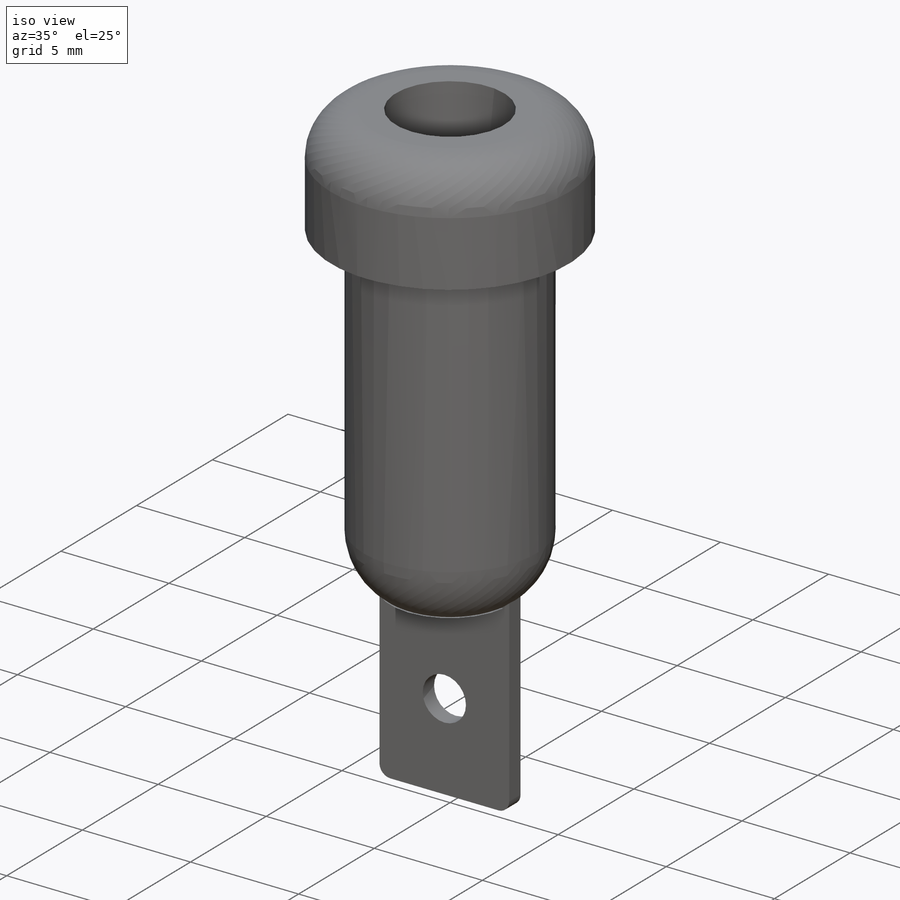
[diagram: iso view]
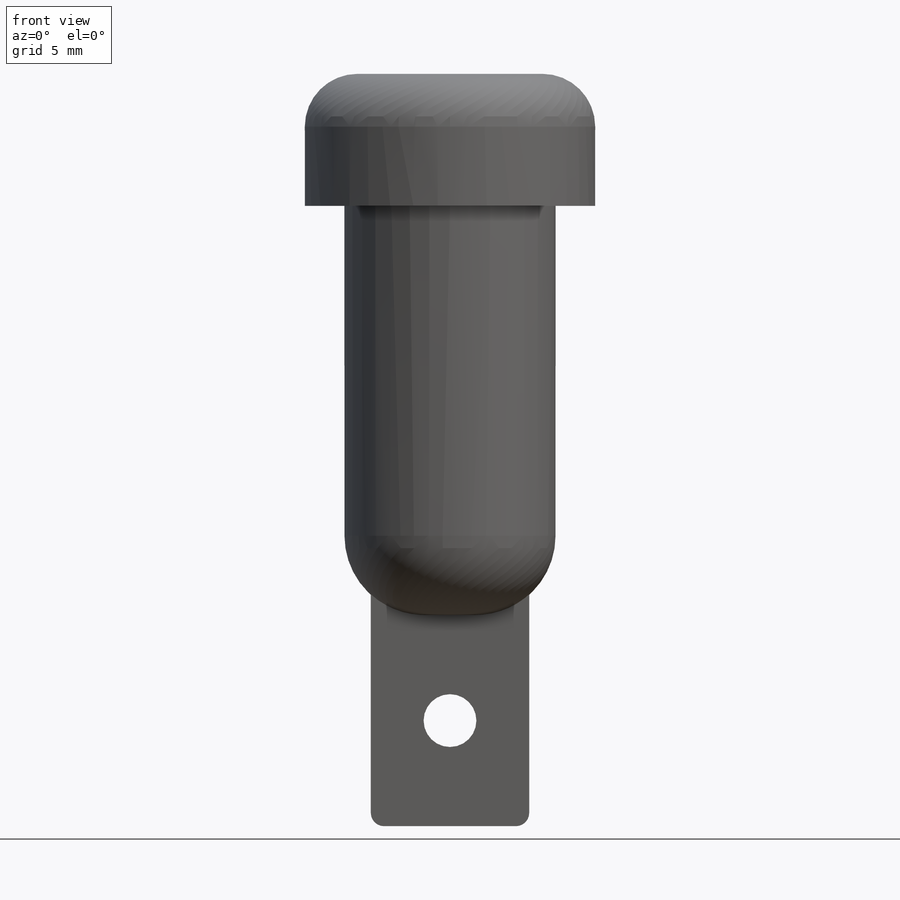
[diagram: front view]
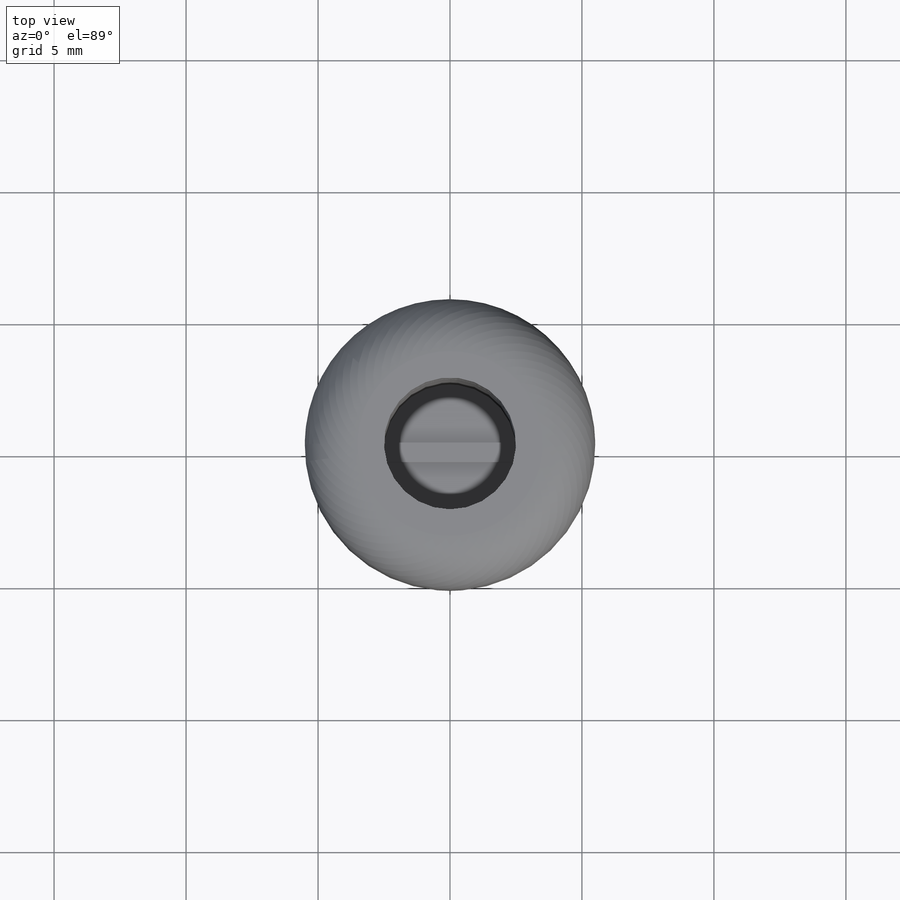
[diagram: top view]
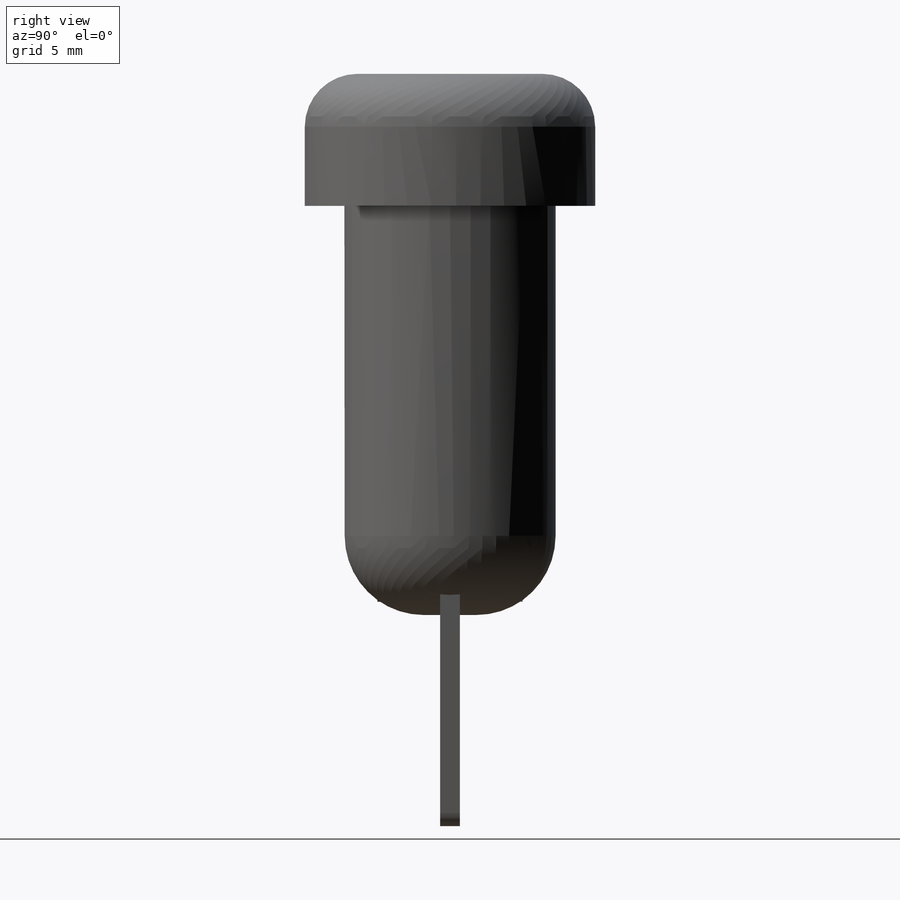
[diagram: right view]
SOLIDWORKS PART (.sldprt)
format: sldprt  version: not decoded by parser v0  size: 310,784 bytes
history: native  units: mm
features: sketch x9, extrude x6, cut_extrude x3, fillet x2, material x1, plane x1 (+13 scaffold rows collapsed)
feature tree (35):
  scaffold x13  (default folders/planes/origin — collapsed)
  material  "Material <not specified>"
  sketch  "Sketch3"  dims[D1=5.0mm D2=11.0mm]
  extrude  "Boss-Extrude1"  Depth=5mm
  fillet  "Fillet1"  Radius=2mm
  sketch  "Sketch4"  dims[D1=5.0mm]
  cut_extrude  "Cut-Extrude1"  Depth=10mm
  sketch  "Sketch5"  dims[D1=5.5mm]
  cut_extrude  "Cut-Extrude2"  Depth=2mm
  plane  "Plane1"  Offset=0.25mm
  sketch  "Sketch7"  dims[D1=5.5mm D2=5.0mm]
  extrude  "Boss-Extrude3"  Depth=12mm
  sketch  "Sketch8"  dims[D1=5.5mm D2=8.0mm]
  extrude  "Boss-Extrude4"  Depth=15mm
  sketch  "Sketch9"  dims[D1=8.0mm]
  extrude  "Boss-Extrude5"  Depth=0.5mm
  fillet  "Fillet2"  Radius=3mm
  sketch  "Sketch10"  dims[D1=0.75mm D2=6.0mm]
  extrude  "Boss-Extrude6"  Depth=8mm
  sketch  "Sketch11"  dims[D1=1.0mm D3=2.0mm D2=4.0mm D4=3.0mm]
  cut_extrude  "Cut-Extrude3"  Depth=8mm
  sketch  "Sketch12"  dims[D1=~2.072975mm]
  extrude  "Boss-Extrude7"  Depth=1mm
decode coverage: 20 of 20 modeling features carry decoded parameters
note: ~ marks probable driven/reference dimensions
note: suppression state not decoded; provenance and decode notes live in map.json
